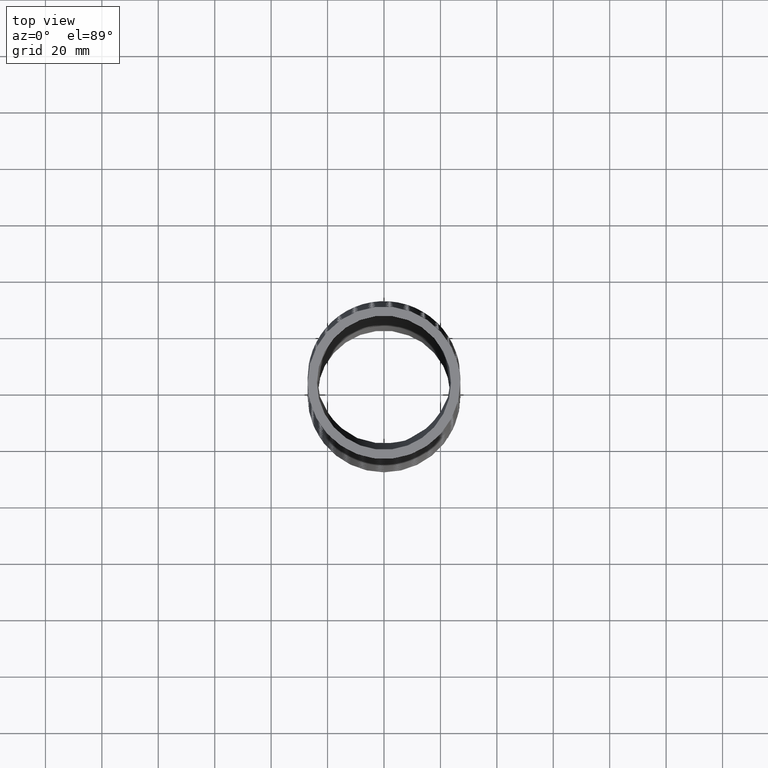
[diagram: clean part render]
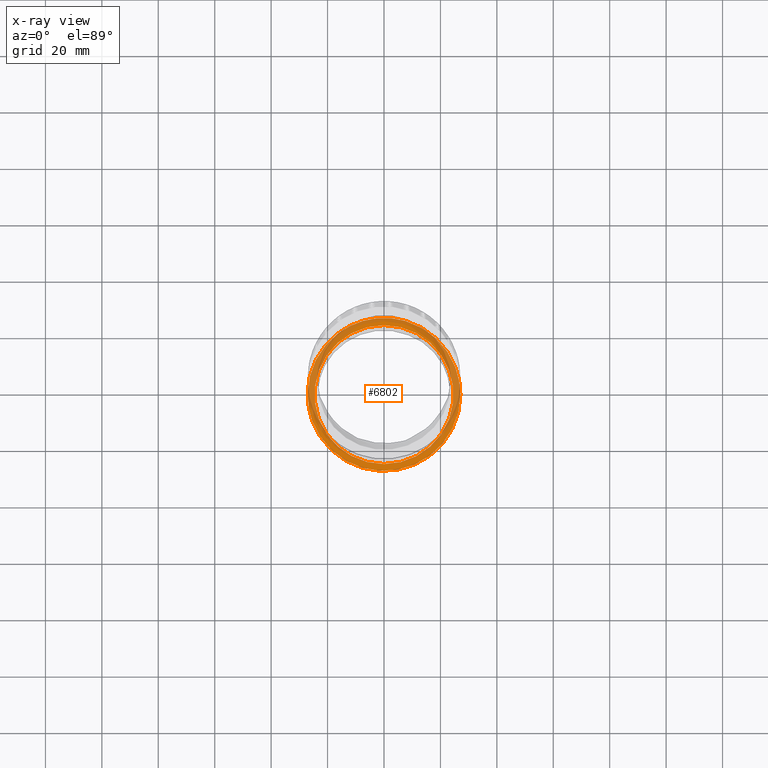
[diagram: x-ray — body ghosted, one internal face saturated and labeled with its STEP entity id]
A machine part, top view, then the same camera in x-ray: the body is ghosted and one INTERNAL B-rep face — a face not visible from any outside direction — is saturated and labeled: STEP entity #6802.
In plain terms, the highlighted planar face has unit normal (0, -0, 1).
Its self-contained STEP definition (entity closure, byte-faithful):
#191 = CARTESIAN_POINT ( 'NONE',  ( -0.7037276800259617500, -0.8072446434565983000, -9.262714008612652700 ) ) ;
#200 = CARTESIAN_POINT ( 'NONE',  ( -0.7782631955487129300, -0.7324187632679164400, -9.262714008612652700 ) ) ;
#205 = CARTESIAN_POINT ( 'NONE',  ( -0.6499482514427057400, -0.8514515231117668600, -9.262714008612658000 ) ) ;
#583 = VERTEX_POINT ( 'NONE', #6473 ) ;
#585 = VERTEX_POINT ( 'NONE', #6470 ) ;
#592 = EDGE_CURVE ( 'NONE', #583, #585, #6543, .T. ) ;
#676 = VERTEX_POINT ( 'NONE', #7710 ) ;
#680 = EDGE_CURVE ( 'NONE', #676, #583, #7717, .T. ) ;
#705 = EDGE_CURVE ( 'NONE', #585, #711, #7840, .T. ) ;
#711 = VERTEX_POINT ( 'NONE', #7843 ) ;
#5722 = CARTESIAN_POINT ( 'NONE',  ( -0.8017395577747730200, -0.7063796895077827400, -9.262714008612652700 ) ) ;
#5733 = CARTESIAN_POINT ( 'NONE',  ( -0.9049690634382594500, -0.5666266751280165700, -9.262714008612652700 ) ) ;
#5766 = CARTESIAN_POINT ( 'NONE',  ( -0.8458177941215032600, -0.6524265166215771300, -9.262714008612652700 ) ) ;
#5784 = CARTESIAN_POINT ( 'NONE',  ( -0.8664589879880020300, -0.6244726228336569000, -9.262714008612654500 ) ) ;
#5915 = CARTESIAN_POINT ( 'NONE',  ( -1.030906851076818000, -0.2794433025312249600, -9.262714008612652700 ) ) ;
#5948 = CARTESIAN_POINT ( 'NONE',  ( -0.9557468315869417400, -0.4749728083820226600, -9.262714008612656300 ) ) ;
#6004 = CARTESIAN_POINT ( 'NONE',  ( -1.051268777061985500, -0.1769242187419678700, -9.262714008612652700 ) ) ;
#6018 = CARTESIAN_POINT ( 'NONE',  ( -1.010826816630397500, -0.3459631815088041200, -9.262714008612649200 ) ) ;
#6024 = CARTESIAN_POINT ( 'NONE',  ( -0.9708254922117530700, -0.4429691652590990200, -9.262714008612652700 ) ) ;
#6041 = CARTESIAN_POINT ( 'NONE',  ( -0.9228380245508204200, -0.5367346768099354700, -9.262714008612656300 ) ) ;
#6216 = CARTESIAN_POINT ( 'NONE',  ( -1.056425755210337300, -0.1422125664638987100, -9.262714008612656300 ) ) ;
#6256 = CARTESIAN_POINT ( 'NONE',  ( -1.063307962536522900, -0.07217048070639123200, -9.262714008612654500 ) ) ;
#6294 = CARTESIAN_POINT ( 'NONE',  ( -1.064999999999999700, -0.002456861999197911300, -9.262714008612654500 ) ) ;
#6470 = CARTESIAN_POINT ( 'NONE',  ( -1.064999999999999700, -0.002456861999197911300, -9.262714008612654500 ) ) ;
#6473 = CARTESIAN_POINT ( 'NONE',  ( 1.065000000000000200, -0.002456861999197953000, -9.262714008612656300 ) ) ;
#6495 = CARTESIAN_POINT ( 'NONE',  ( -0.5633666845533729100, -0.9095533873487473600, -9.262714008612659800 ) ) ;
#6496 = CARTESIAN_POINT ( 'NONE',  ( -0.5335135070157938100, -0.9275425323680726000, -9.262714008612654500 ) ) ;
#6497 = CARTESIAN_POINT ( 'NONE',  ( -0.4872068661670266900, -0.9524064287684387300, -9.262714008612652700 ) ) ;
#6498 = CARTESIAN_POINT ( 'NONE',  ( -0.4714738104669185000, -0.9603601272806984200, -9.262714008612654500 ) ) ;
#6499 = CARTESIAN_POINT ( 'NONE',  ( -0.4397082700802111800, -0.9754389920613691900, -9.262714008612654500 ) ) ;
#6500 = CARTESIAN_POINT ( 'NONE',  ( -0.4237005233106320700, -0.9825555101646725700, -9.262714008612658000 ) ) ;
#6502 = CARTESIAN_POINT ( 'NONE',  ( -0.3430488081238630100, -1.016063803451082000, -9.262714008612661600 ) ) ;
#6503 = CARTESIAN_POINT ( 'NONE',  ( -0.2765833883296086000, -1.036291881133750500, -9.262714008612650900 ) ) ;
#6504 = CARTESIAN_POINT ( 'NONE',  ( -0.1910809173202505100, -1.053385466942710700, -9.262714008612650900 ) ) ;
#6505 = CARTESIAN_POINT ( 'NONE',  ( -0.1738582977511551900, -1.056390918161652600, -9.262714008612658000 ) ) ;
#6506 = CARTESIAN_POINT ( 'NONE',  ( -0.1391645635325402300, -1.061560926065999900, -9.262714008612658000 ) ) ;
#6507 = CARTESIAN_POINT ( 'NONE',  ( -0.1216464605520841700, -1.063728868486831100, -9.262714008612658000 ) ) ;
#6508 = CARTESIAN_POINT ( 'NONE',  ( -0.06921903593886713500, -1.068897133201815100, -9.262714008612658000 ) ) ;
#6509 = CARTESIAN_POINT ( 'NONE',  ( -0.03435558332401999300, -1.070587572063825200, -9.262714008612654500 ) ) ;
#6510 = CARTESIAN_POINT ( 'NONE',  ( 0.06997793902181141700, -1.070546080977664100, -9.262714008612654500 ) ) ;
#6511 = CARTESIAN_POINT ( 'NONE',  ( 0.1391936347036961100, -1.063750343275565100, -9.262714008612659800 ) ) ;
#6512 = CARTESIAN_POINT ( 'NONE',  ( 0.2252760011455316500, -1.046551300743363800, -9.262714008612658000 ) ) ;
#6513 = CARTESIAN_POINT ( 'NONE',  ( 0.2424960911559663500, -1.042663443774930900, -9.262714008612654500 ) ) ;
#6514 = CARTESIAN_POINT ( 'NONE',  ( 0.2765158302168751500, -1.034090662383198700, -9.262714008612658000 ) ) ;
#6515 = CARTESIAN_POINT ( 'NONE',  ( 0.2933596559574698200, -1.029398364892686800, -9.262714008612654500 ) ) ;
#6516 = CARTESIAN_POINT ( 'NONE',  ( 0.3434016975302040500, -1.014125009393777700, -9.262714008612656300 ) ) ;
#6517 = CARTESIAN_POINT ( 'NONE',  ( 0.4088215702389547100, -0.9905756200212181300, -9.262714008612649200 ) ) ;
#6518 = CARTESIAN_POINT ( 'NONE',  ( 0.4716700422429557200, -0.9607402441706469600, -9.262714008612654500 ) ) ;
#6519 = CARTESIAN_POINT ( 'NONE',  ( 0.5178269894782652200, -0.9359694772314415300, -9.262714008612659800 ) ) ;
#6520 = CARTESIAN_POINT ( 'NONE',  ( 0.5330491128324895700, -0.9273128037285618400, -9.262714008612654500 ) ) ;
#6521 = CARTESIAN_POINT ( 'NONE',  ( 0.5631600936206556700, -0.9091847625895185200, -9.262714008612650900 ) ) ;
#6522 = CARTESIAN_POINT ( 'NONE',  ( 0.5780416721302296100, -0.8997140799183155300, -9.262714008612652700 ) ) ;
#6523 = CARTESIAN_POINT ( 'NONE',  ( 0.6507855682479463100, -0.8508548319732941500, -9.262714008612649200 ) ) ;
#6524 = CARTESIAN_POINT ( 'NONE',  ( 0.7043836644980993000, -0.8065958230939801500, -9.262714008612652700 ) ) ;
#6525 = CARTESIAN_POINT ( 'NONE',  ( 0.7780465773346781900, -0.7326313545230158700, -9.262714008612650900 ) ) ;
#6526 = CARTESIAN_POINT ( 'NONE',  ( 0.8014704792178454200, -0.7067048382415642700, -9.262714008612650900 ) ) ;
#6527 = CARTESIAN_POINT ( 'NONE',  ( 0.8348561054997546400, -0.6658460733127021800, -9.262714008612652700 ) ) ;
#6528 = CARTESIAN_POINT ( 'NONE',  ( 0.8456611241909781600, -0.6519322186872302800, -9.262714008612649200 ) ) ;
#6529 = CARTESIAN_POINT ( 'NONE',  ( 0.8664581644788735800, -0.6237482699936778300, -9.262714008612647400 ) ) ;
#6530 = CARTESIAN_POINT ( 'NONE',  ( 0.8764769669614140800, -0.6094458451133556400, -9.262714008612656300 ) ) ;
#6531 = CARTESIAN_POINT ( 'NONE',  ( 0.9247023912038127000, -0.5368980949893051900, -9.262714008612654500 ) ) ;
#6533 = CARTESIAN_POINT ( 'NONE',  ( 0.9573565423037481100, -0.4755754295751242200, -9.262714008612652700 ) ) ;
#6534 = CARTESIAN_POINT ( 'NONE',  ( 0.9973713074486653100, -0.3786219586072364100, -9.262714008612652700 ) ) ;
#6535 = CARTESIAN_POINT ( 'NONE',  ( 1.009244063152144900, -0.3452994627229958900, -9.262714008612658000 ) ) ;
#6537 = CARTESIAN_POINT ( 'NONE',  ( 1.029466545330415300, -0.2782750243100372600, -9.262714008612658000 ) ) ;
#6538 = CARTESIAN_POINT ( 'NONE',  ( 1.037876147354733100, -0.2444731584930671900, -9.262714008612656300 ) ) ;
#6539 = CARTESIAN_POINT ( 'NONE',  ( 1.058113903578141700, -0.1422180032824658400, -9.262714008612654500 ) ) ;
#6540 = CARTESIAN_POINT ( 'NONE',  ( 1.064999999999999700, -0.07292349537567993600, -9.262714008612677600 ) ) ;
#6541 = CARTESIAN_POINT ( 'NONE',  ( -1.064999999999999900, -0.03726012989178748000, -9.262714008612658000 ) ) ;
#6542 = CARTESIAN_POINT ( 'NONE',  ( 1.065000000000000200, -0.002456861999197953000, -9.262714008612656300 ) ) ;
#6543 = B_SPLINE_CURVE_WITH_KNOTS ( 'NONE', 3,
 ( #6542, #6540, #6539, #6538, #6537, #6535, #6534, #6533, #6531, #6530, #6529, #6528, #6527, #6526, #6525, #6524, #6523, #6522, #6521, #6520, #6519, #6518, #6517, #6516, #6515, #6514, #6513, #6512, #6511, #6510, #6509, #6508, #6507, #6506, #6505, #6504, #6503, #6502, #6500, #6499, #6498, #6497, #6496, #6495, #205, #191, #200, #5722, #5766, #5784, #5733, #6041, #5948, #6024, #6018, #5915, #6004, #6216, #6256, #6541, #6294 ),
 .UNSPECIFIED., .F., .F.,
 ( 4, 2, 2, 2, 2, 2, 2, 2, 2, 2, 2, 1, 2, 2, 2, 2, 2, 2, 2, 2, 2, 2, 2, 2, 2, 2, 2, 2, 2, 2, 4 ),
 ( 1.043428983317002500E-016, 0.005293420374023370500, 0.007940130561035001500, 0.01058684074804663000, 0.01588026112206988500, 0.01720361621557569400, 0.01852697130908150300, 0.02117368149609310400, 0.02646710187011630500, 0.02779045696362210000, 0.02911381205712790200, 0.03176052224413950700, 0.03440723243115111100, 0.03573058752465691600, 0.03705394261816271500, 0.04234736299218593000, 0.04499407317919753400, 0.04631742827270333300, 0.04764078336620912500, 0.05293420374023234000, 0.05425755883373813800, 0.05558091392724393000, 0.05822762411425552700, 0.06352104448827872200, 0.06616775467529033300, 0.06881446486230194400, 0.07146117504931354100, 0.07410788523632515200, 0.07940130561034836100, 0.08204801579735995800, 0.08469472598437156900 ),
 .UNSPECIFIED. ) ;
#6769 = EDGE_LOOP ( 'NONE', ( #6824, #6823 ) ) ;
#6793 = ORIENTED_EDGE ( 'NONE', *, *, #680, .F. ) ;
#6796 = EDGE_LOOP ( 'NONE', ( #6797, #6803, #6800, #6793 ) ) ;
#6797 = ORIENTED_EDGE ( 'NONE', *, *, #6808, .T. ) ;
#6800 = ORIENTED_EDGE ( 'NONE', *, *, #592, .F. ) ;
#6802 = ADVANCED_FACE ( 'NONE', ( #16790, #16789 ), #16823, .T. ) ;
#6803 = ORIENTED_EDGE ( 'NONE', *, *, #705, .F. ) ;
#6808 = EDGE_CURVE ( 'NONE', #676, #711, #16818, .T. ) ;
#6810 = EDGE_CURVE ( 'NONE', #7296, #7262, #16855, .T. ) ;
#6823 = ORIENTED_EDGE ( 'NONE', *, *, #6810, .F. ) ;
#6824 = ORIENTED_EDGE ( 'NONE', *, *, #7281, .F. ) ;
#7262 = VERTEX_POINT ( 'NONE', #20438 ) ;
#7281 = EDGE_CURVE ( 'NONE', #7262, #7296, #20545, .T. ) ;
#7296 = VERTEX_POINT ( 'NONE', #20518 ) ;
#7710 = CARTESIAN_POINT ( 'NONE',  ( 0.2942021162830115200, 1.023881841711950600, -9.262714008612654500 ) ) ;
#7717 = B_SPLINE_CURVE_WITH_KNOTS ( 'NONE', 3,
 ( #7768, #7767, #7766, #7765, #7764, #7763, #7762, #7761, #7760, #7759, #7758, #7757, #7756, #7755, #7754, #7753, #7752, #7751, #7750, #7749, #7748, #7747, #7746, #7745, #7744, #7743 ),
 .UNSPECIFIED., .F., .F.,
 ( 4, 2, 2, 2, 2, 2, 2, 2, 2, 2, 2, 2, 4 ),
 ( 0.1345937247587071000, 0.1367667806220762600, 0.1389398364854453900, 0.1432859482121837100, 0.1454590040755528700, 0.1476320599389220100, 0.1519781716656603000, 0.1541512275290294600, 0.1563242833923985900, 0.1606703951191368900, 0.1628434509825060200, 0.1650165068458751500, 0.1693626185726134500 ),
 .UNSPECIFIED. ) ;
#7743 = CARTESIAN_POINT ( 'NONE',  ( 1.065000000000000200, -0.002456861999197953000, -9.262714008612656300 ) ) ;
#7744 = CARTESIAN_POINT ( 'NONE',  ( 1.064999999999999700, 0.05539908746670287000, -9.262714008612675800 ) ) ;
#7745 = CARTESIAN_POINT ( 'NONE',  ( 1.060342751581643500, 0.1127639391957776900, -9.262714008612650900 ) ) ;
#7746 = CARTESIAN_POINT ( 'NONE',  ( 1.046451226837835600, 0.1980818997603104900, -9.262714008612652700 ) ) ;
#7747 = CARTESIAN_POINT ( 'NONE',  ( 1.040635323112067500, 0.2264989185426692400, -9.262714008612652700 ) ) ;
#7748 = CARTESIAN_POINT ( 'NONE',  ( 1.026822309547758900, 0.2823909090176686700, -9.262714008612652700 ) ) ;
#7749 = CARTESIAN_POINT ( 'NONE',  ( 1.018828454095150200, 0.3099044290535127900, -9.262714008612652700 ) ) ;
#7750 = CARTESIAN_POINT ( 'NONE',  ( 0.9916585098094380400, 0.3911768638349291700, -9.262714008612654500 ) ) ;
#7751 = CARTESIAN_POINT ( 'NONE',  ( 0.9693142940294945400, 0.4436757077518558300, -9.262714008612656300 ) ) ;
#7752 = CARTESIAN_POINT ( 'NONE',  ( 0.9293705993274212800, 0.5198675916140215200, -9.262714008612656300 ) ) ;
#7753 = CARTESIAN_POINT ( 'NONE',  ( 0.9149175160717120100, 0.5449327526267580000, -9.262714008612654500 ) ) ;
#7754 = CARTESIAN_POINT ( 'NONE',  ( 0.8840846455784060500, 0.5937041760904656600, -9.262714008612652700 ) ) ;
#7755 = CARTESIAN_POINT ( 'NONE',  ( 0.8677770295423944400, 0.6173160520611539200, -9.262714008612654500 ) ) ;
#7756 = CARTESIAN_POINT ( 'NONE',  ( 0.8162501487881248500, 0.6858905298127083700, -9.262714008612654500 ) ) ;
#7757 = CARTESIAN_POINT ( 'NONE',  ( 0.7784432471744102700, 0.7286062182954791100, -9.262714008612652700 ) ) ;
#7758 = CARTESIAN_POINT ( 'NONE',  ( 0.7165185169770067500, 0.7881519694021200700, -9.262714008612652700 ) ) ;
#7759 = CARTESIAN_POINT ( 'NONE',  ( 0.6949848738317179200, 0.8072578079710724900, -9.262714008612652700 ) ) ;
#7760 = CARTESIAN_POINT ( 'NONE',  ( 0.6501912301130036200, 0.8438397888233273300, -9.262714008612650900 ) ) ;
#7761 = CARTESIAN_POINT ( 'NONE',  ( 0.6272033438012178900, 0.8610962731117929300, -9.262714008612645600 ) ) ;
#7762 = CARTESIAN_POINT ( 'NONE',  ( 0.5565189076162810900, 0.9098539484646939200, -9.262714008612643800 ) ) ;
#7763 = CARTESIAN_POINT ( 'NONE',  ( 0.5071123457644636200, 0.9383622038515625500, -9.262714008612658000 ) ) ;
#7764 = CARTESIAN_POINT ( 'NONE',  ( 0.4295805629375033000, 0.9751353619512145300, -9.262714008612659800 ) ) ;
#7765 = CARTESIAN_POINT ( 'NONE',  ( 0.4031636175787720000, 0.9863901612865093600, -9.262714008612661600 ) ) ;
#7766 = CARTESIAN_POINT ( 'NONE',  ( 0.3491500197061456800, 1.006834986331055100, -9.262714008612663400 ) ) ;
#7767 = CARTESIAN_POINT ( 'NONE',  ( 0.3217402974460824000, 1.015946003062057100, -9.262714008612652700 ) ) ;
#7768 = CARTESIAN_POINT ( 'NONE',  ( 0.2942021162830115200, 1.023881841711950600, -9.262714008612654500 ) ) ;
#7839 = CARTESIAN_POINT ( 'NONE',  ( -1.064999999999999100, 0.05476456750031510900, -9.262714008612654500 ) ) ;
#7840 = B_SPLINE_CURVE_WITH_KNOTS ( 'NONE', 3,
 ( #7842, #7839, #7899, #7898, #7897, #7896, #7895, #7894, #7893, #7892, #7891, #7890, #7889, #7888, #7887, #7886, #7885, #7884, #7883, #7882, #7881, #7880, #7879, #7878, #7877, #7876 ),
 .UNSPECIFIED., .F., .F.,
 ( 4, 2, 2, 2, 2, 2, 2, 2, 2, 2, 2, 2, 4 ),
 ( 0.08469472598437156900, 0.08904628690213174700, 0.09122206736101183500, 0.09339784781989192400, 0.09774940873765210200, 0.09992518919653219100, 0.1021009696554122900, 0.1064525305731724700, 0.1086283110320525600, 0.1108040914909326400, 0.1151556524086928100, 0.1173314328675728900, 0.1195072133264529800 ),
 .UNSPECIFIED. ) ;
#7842 = CARTESIAN_POINT ( 'NONE',  ( -1.064999999999999700, -0.002456861999197911300, -9.262714008612654500 ) ) ;
#7843 = CARTESIAN_POINT ( 'NONE',  ( -0.2942021162829624400, 1.023881841711964800, -9.262714008612654500 ) ) ;
#7876 = CARTESIAN_POINT ( 'NONE',  ( -0.2942021162829624400, 1.023881841711964800, -9.262714008612654500 ) ) ;
#7877 = CARTESIAN_POINT ( 'NONE',  ( -0.3218549538499294600, 1.015912961855898000, -9.262714008612654500 ) ) ;
#7878 = CARTESIAN_POINT ( 'NONE',  ( -0.3494314520143590500, 1.006734933085498700, -9.262714008612643800 ) ) ;
#7879 = CARTESIAN_POINT ( 'NONE',  ( -0.4033017766846077000, 0.9863313433048415100, -9.262714008612645600 ) ) ;
#7880 = CARTESIAN_POINT ( 'NONE',  ( -0.4296783199114218600, 0.9750917661898613800, -9.262714008612652700 ) ) ;
#7881 = CARTESIAN_POINT ( 'NONE',  ( -0.5071696539086263400, 0.9383294688202508100, -9.262714008612654500 ) ) ;
#7882 = CARTESIAN_POINT ( 'NONE',  ( -0.5566566283907660200, 0.9097826507791084700, -9.262714008612652700 ) ) ;
#7883 = CARTESIAN_POINT ( 'NONE',  ( -0.6275823012860583000, 0.8608229074516323700, -9.262714008612652700 ) ) ;
#7884 = CARTESIAN_POINT ( 'NONE',  ( -0.6507705089334501200, 0.8433901402654597800, -9.262714008612650900 ) ) ;
#7885 = CARTESIAN_POINT ( 'NONE',  ( -0.6954556697863516500, 0.8068493264945322300, -9.262714008612652700 ) ) ;
#7886 = CARTESIAN_POINT ( 'NONE',  ( -0.7169233538107669900, 0.7877820833268172100, -9.262714008612652700 ) ) ;
#7887 = CARTESIAN_POINT ( 'NONE',  ( -0.7787703454431053100, 0.7282523505375642100, -9.262714008612654500 ) ) ;
#7888 = CARTESIAN_POINT ( 'NONE',  ( -0.8166097190227648000, 0.6854765452096903700, -9.262714008612654500 ) ) ;
#7889 = CARTESIAN_POINT ( 'NONE',  ( -0.8682513126641964200, 0.6166519617672054900, -9.262714008612654500 ) ) ;
#7890 = CARTESIAN_POINT ( 'NONE',  ( -0.8846400169955969100, 0.5928791844301498600, -9.262714008612659800 ) ) ;
#7891 = CARTESIAN_POINT ( 'NONE',  ( -0.9155105450810253600, 0.5439391788029458400, -9.262714008612658000 ) ) ;
#7892 = CARTESIAN_POINT ( 'NONE',  ( -0.9298510905569310500, 0.5190054303958480100, -9.262714008612658000 ) ) ;
#7893 = CARTESIAN_POINT ( 'NONE',  ( -0.9696864102981450600, 0.4428543950388503800, -9.262714008612659800 ) ) ;
#7894 = CARTESIAN_POINT ( 'NONE',  ( -0.9920147647715098500, 0.3902957466923383000, -9.262714008612659800 ) ) ;
#7895 = CARTESIAN_POINT ( 'NONE',  ( -1.019174290901845700, 0.3087749810600533600, -9.262714008612658000 ) ) ;
#7896 = CARTESIAN_POINT ( 'NONE',  ( -1.027166982152622800, 0.2811521493448667100, -9.262714008612652700 ) ) ;
#7897 = CARTESIAN_POINT ( 'NONE',  ( -1.040969770457906800, 0.2249818935383350600, -9.262714008612652700 ) ) ;
#7898 = CARTESIAN_POINT ( 'NONE',  ( -1.046717560705370000, 0.1966611118904243400, -9.262714008612652700 ) ) ;
#7899 = CARTESIAN_POINT ( 'NONE',  ( -1.060443891870886900, 0.1116976574198789000, -9.262714008612652700 ) ) ;
#16789 = FACE_BOUND ( 'NONE', #6769, .T. ) ;
#16790 = FACE_OUTER_BOUND ( 'NONE', #6796, .T. ) ;
#16814 = DIRECTION ( 'NONE',  ( 0.0000000000000000000, -1.000000000000000000, 0.0000000000000000000 ) ) ;
#16815 = DIRECTION ( 'NONE',  ( 0.0000000000000000000, -1.734723475976807100E-018, 1.000000000000000000 ) ) ;
#16816 = CARTESIAN_POINT ( 'NONE',  ( 0.0000000000000000000, -0.004877175149917749300, -9.262714008612654500 ) ) ;
#16817 = AXIS2_PLACEMENT_3D ( 'NONE', #16816, #16815, #16814 ) ;
#16818 = CIRCLE ( 'NONE', #16817, 1.070000000000000300 ) ;
#16819 = DIRECTION ( 'NONE',  ( 0.0000000000000000000, -1.000000000000000000, -1.734723475976807100E-018 ) ) ;
#16820 = DIRECTION ( 'NONE',  ( 0.0000000000000000000, -1.734723475976807100E-018, 1.000000000000000000 ) ) ;
#16821 = CARTESIAN_POINT ( 'NONE',  ( 0.0000000000000000000, 1.065122824850082600, -9.262714008612654500 ) ) ;
#16822 = AXIS2_PLACEMENT_3D ( 'NONE', #16821, #16820, #16819 ) ;
#16823 = PLANE ( 'NONE',  #16822 ) ;
#16851 = DIRECTION ( 'NONE',  ( 0.0000000000000000000, -1.000000000000000000, 0.0000000000000000000 ) ) ;
#16852 = DIRECTION ( 'NONE',  ( 0.0000000000000000000, -1.734723475976807100E-018, 1.000000000000000000 ) ) ;
#16853 = CARTESIAN_POINT ( 'NONE',  ( 0.0000000000000000000, -0.004877175149917749300, -9.262714008612654500 ) ) ;
#16854 = AXIS2_PLACEMENT_3D ( 'NONE', #16853, #16852, #16851 ) ;
#16855 = CIRCLE ( 'NONE', #16854, 0.9700000000000003100 ) ;
#20438 = CARTESIAN_POINT ( 'NONE',  ( 0.0000000000000000000, -0.9748771751499181200, -9.262714008612654500 ) ) ;
#20518 = CARTESIAN_POINT ( 'NONE',  ( 1.187907395172932900E-016, 0.9651228248500824900, -9.262714008612654500 ) ) ;
#20540 = DIRECTION ( 'NONE',  ( 0.0000000000000000000, -1.000000000000000000, 0.0000000000000000000 ) ) ;
#20541 = DIRECTION ( 'NONE',  ( 0.0000000000000000000, -1.734723475976807100E-018, 1.000000000000000000 ) ) ;
#20542 = CARTESIAN_POINT ( 'NONE',  ( 0.0000000000000000000, -0.004877175149917749300, -9.262714008612654500 ) ) ;
#20544 = AXIS2_PLACEMENT_3D ( 'NONE', #20542, #20541, #20540 ) ;
#20545 = CIRCLE ( 'NONE', #20544, 0.9700000000000003100 ) ;